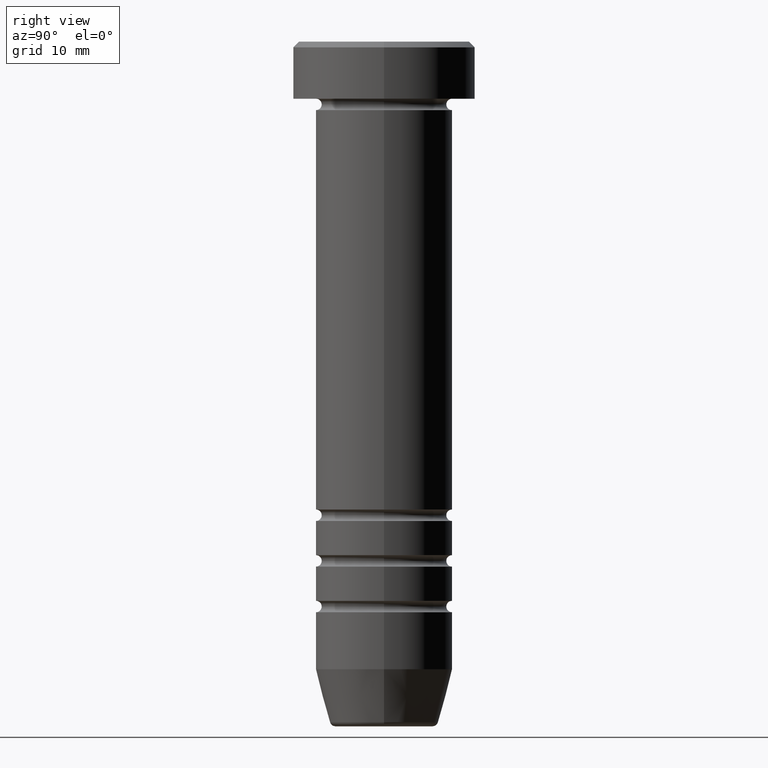
[diagram: clean part render]
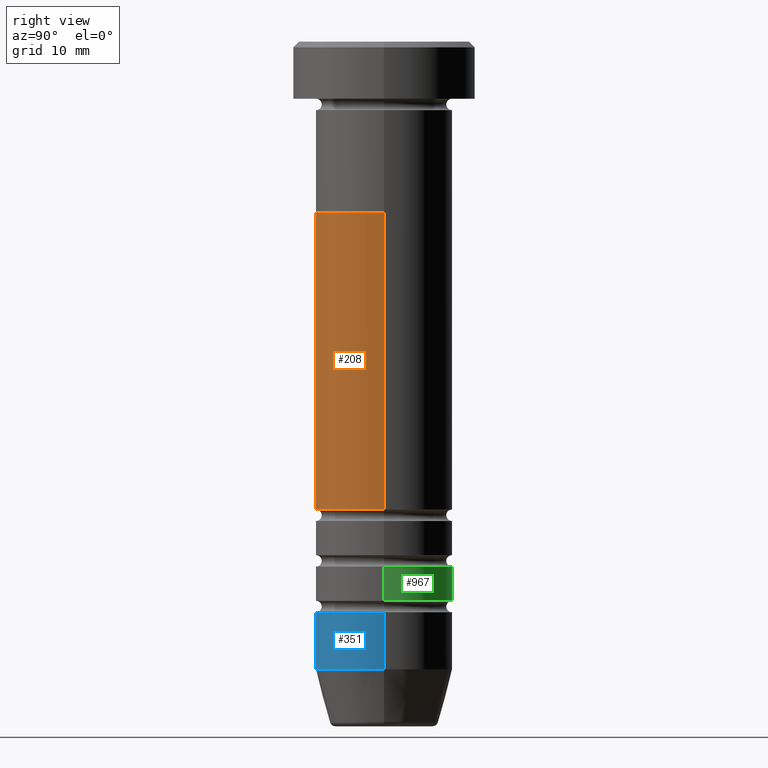
[diagram: same view with three faces highlighted in distinct colors, each labeled with its STEP entity id]
A machine part, right view with three faces highlighted in distinct colors.
Their STEP definitions:

[orange] entity #208 — the highlighted cylindrical surface (partial cylindrical patch) has radius 6 mm, axis along (-0, -0, 1).
#12 = CARTESIAN_POINT ( 'NONE',  ( 0.000000000000000000, 0.000000000000000000, -41.00000000000000711 ) ) ;
#26 = AXIS2_PLACEMENT_3D ( 'NONE', #617, #214, #1023 ) ;
#54 = CARTESIAN_POINT ( 'NONE',  ( -6.000000000000000888, 7.347880794884120722E-16, -15.00000000000000000 ) ) ;
#86 = FACE_OUTER_BOUND ( 'NONE', #486, .T. ) ;
#114 = EDGE_CURVE ( 'NONE', #652, #404, #651, .T. ) ;
#124 = CIRCLE ( 'NONE', #26, 6.000000000000000000 ) ;
#131 = LINE ( 'NONE', #536, #1005 ) ;
#176 = ORIENTED_EDGE ( 'NONE', *, *, #114, .F. ) ;
#208 = ADVANCED_FACE ( 'NONE', ( #86 ), #330, .T. ) ;
#213 = CARTESIAN_POINT ( 'NONE',  ( 6.000000000000000000, 0.000000000000000000, -15.00000000000000000 ) ) ;
#214 = DIRECTION ( 'NONE',  ( -0.000000000000000000, -0.000000000000000000, 1.000000000000000000 ) ) ;
#219 = CARTESIAN_POINT ( 'NONE',  ( -5.999999999999996447, 7.347880794884115792E-16, 0.000000000000000000 ) ) ;
#248 = AXIS2_PLACEMENT_3D ( 'NONE', #401, #1059, #736 ) ;
#277 = VECTOR ( 'NONE', #312, 1000.000000000000000 ) ;
#298 = CARTESIAN_POINT ( 'NONE',  ( 5.999999999999992895, 0.000000000000000000, -41.00000000000000711 ) ) ;
#303 = DIRECTION ( 'NONE',  ( -0.000000000000000000, -0.000000000000000000, 1.000000000000000000 ) ) ;
#312 = DIRECTION ( 'NONE',  ( -0.000000000000000000, -0.000000000000000000, 1.000000000000000000 ) ) ;
#320 = DIRECTION ( 'NONE',  ( -0.000000000000000000, -0.000000000000000000, 1.000000000000000000 ) ) ;
#330 = CYLINDRICAL_SURFACE ( 'NONE', #248, 5.999999999999996447 ) ;
#401 = CARTESIAN_POINT ( 'NONE',  ( 0.000000000000000000, 0.000000000000000000, 0.000000000000000000 ) ) ;
#404 = VERTEX_POINT ( 'NONE', #54 ) ;
#486 = EDGE_LOOP ( 'NONE', ( #176, #586, #917, #656 ) ) ;
#513 = EDGE_CURVE ( 'NONE', #669, #756, #131, .T. ) ;
#536 = CARTESIAN_POINT ( 'NONE',  ( 5.999999999999996447, 0.000000000000000000, 0.000000000000000000 ) ) ;
#586 = ORIENTED_EDGE ( 'NONE', *, *, #921, .T. ) ;
#617 = CARTESIAN_POINT ( 'NONE',  ( 0.000000000000000000, 0.000000000000000000, -15.00000000000000000 ) ) ;
#651 = LINE ( 'NONE', #219, #277 ) ;
#652 = VERTEX_POINT ( 'NONE', #1036 ) ;
#656 = ORIENTED_EDGE ( 'NONE', *, *, #1041, .F. ) ;
#669 = VERTEX_POINT ( 'NONE', #298 ) ;
#722 = CIRCLE ( 'NONE', #871, 5.999999999999992895 ) ;
#736 = DIRECTION ( 'NONE',  ( 1.000000000000000000, 0.000000000000000000, 0.000000000000000000 ) ) ;
#756 = VERTEX_POINT ( 'NONE', #213 ) ;
#871 = AXIS2_PLACEMENT_3D ( 'NONE', #12, #320, #899 ) ;
#899 = DIRECTION ( 'NONE',  ( 1.000000000000000000, 0.000000000000000000, 0.000000000000000000 ) ) ;
#917 = ORIENTED_EDGE ( 'NONE', *, *, #513, .T. ) ;
#921 = EDGE_CURVE ( 'NONE', #652, #669, #722, .T. ) ;
#1005 = VECTOR ( 'NONE', #303, 1000.000000000000000 ) ;
#1023 = DIRECTION ( 'NONE',  ( 1.000000000000000000, 0.000000000000000000, 0.000000000000000000 ) ) ;
#1036 = CARTESIAN_POINT ( 'NONE',  ( -5.999999999999992895, 7.347880794884112834E-16, -41.00000000000000711 ) ) ;
#1041 = EDGE_CURVE ( 'NONE', #404, #756, #124, .T. ) ;
#1059 = DIRECTION ( 'NONE',  ( -0.000000000000000000, -0.000000000000000000, 1.000000000000000000 ) ) ;

[blue] entity #351 — the highlighted cylindrical surface (partial cylindrical patch) has radius 6 mm, axis along (-0, -0, 1).
#25 = ORIENTED_EDGE ( 'NONE', *, *, #281, .F. ) ;
#42 = CIRCLE ( 'NONE', #706, 6.000000000000000000 ) ;
#108 = DIRECTION ( 'NONE',  ( -0.000000000000000000, -0.000000000000000000, 1.000000000000000000 ) ) ;
#115 = LINE ( 'NONE', #601, #809 ) ;
#123 = DIRECTION ( 'NONE',  ( -0.000000000000000000, -0.000000000000000000, 1.000000000000000000 ) ) ;
#168 = AXIS2_PLACEMENT_3D ( 'NONE', #350, #507, #272 ) ;
#185 = VERTEX_POINT ( 'NONE', #338 ) ;
#193 = EDGE_CURVE ( 'NONE', #717, #556, #42, .T. ) ;
#206 = CYLINDRICAL_SURFACE ( 'NONE', #873, 6.000000000000000000 ) ;
#230 = CARTESIAN_POINT ( 'NONE',  ( 6.000000000000000000, 0.000000000000000000, -54.99999999999999289 ) ) ;
#264 = CIRCLE ( 'NONE', #168, 6.000000000000000000 ) ;
#272 = DIRECTION ( 'NONE',  ( 1.000000000000000000, 0.000000000000000000, 0.000000000000000000 ) ) ;
#281 = EDGE_CURVE ( 'NONE', #185, #717, #115, .T. ) ;
#296 = EDGE_CURVE ( 'NONE', #185, #715, #264, .T. ) ;
#315 = EDGE_LOOP ( 'NONE', ( #25, #830, #430, #748 ) ) ;
#338 = CARTESIAN_POINT ( 'NONE',  ( -6.000000000000000000, 7.347880794884119736E-16, -54.99999999999999289 ) ) ;
#350 = CARTESIAN_POINT ( 'NONE',  ( 0.000000000000000000, 0.000000000000000000, -54.99999999999999289 ) ) ;
#351 = ADVANCED_FACE ( 'NONE', ( #938 ), #206, .T. ) ;
#430 = ORIENTED_EDGE ( 'NONE', *, *, #714, .T. ) ;
#445 = DIRECTION ( 'NONE',  ( 1.000000000000000000, 0.000000000000000000, 0.000000000000000000 ) ) ;
#490 = LINE ( 'NONE', #640, #829 ) ;
#507 = DIRECTION ( 'NONE',  ( -0.000000000000000000, -0.000000000000000000, 1.000000000000000000 ) ) ;
#523 = CARTESIAN_POINT ( 'NONE',  ( 0.000000000000000000, 0.000000000000000000, 0.000000000000000000 ) ) ;
#556 = VERTEX_POINT ( 'NONE', #573 ) ;
#573 = CARTESIAN_POINT ( 'NONE',  ( 6.000000000000000000, 0.000000000000000000, -50.00000000000000000 ) ) ;
#601 = CARTESIAN_POINT ( 'NONE',  ( -6.000000000000000000, 7.347880794884119736E-16, 0.000000000000000000 ) ) ;
#640 = CARTESIAN_POINT ( 'NONE',  ( 6.000000000000000000, 0.000000000000000000, 0.000000000000000000 ) ) ;
#664 = DIRECTION ( 'NONE',  ( 1.000000000000000000, 0.000000000000000000, 0.000000000000000000 ) ) ;
#706 = AXIS2_PLACEMENT_3D ( 'NONE', #900, #740, #664 ) ;
#714 = EDGE_CURVE ( 'NONE', #715, #556, #490, .T. ) ;
#715 = VERTEX_POINT ( 'NONE', #230 ) ;
#717 = VERTEX_POINT ( 'NONE', #883 ) ;
#740 = DIRECTION ( 'NONE',  ( -0.000000000000000000, -0.000000000000000000, 1.000000000000000000 ) ) ;
#748 = ORIENTED_EDGE ( 'NONE', *, *, #193, .F. ) ;
#809 = VECTOR ( 'NONE', #108, 1000.000000000000000 ) ;
#829 = VECTOR ( 'NONE', #961, 1000.000000000000000 ) ;
#830 = ORIENTED_EDGE ( 'NONE', *, *, #296, .T. ) ;
#873 = AXIS2_PLACEMENT_3D ( 'NONE', #523, #123, #445 ) ;
#883 = CARTESIAN_POINT ( 'NONE',  ( -6.000000000000000000, 7.347880794884119736E-16, -50.00000000000000000 ) ) ;
#900 = CARTESIAN_POINT ( 'NONE',  ( 0.000000000000000000, 0.000000000000000000, -50.00000000000000000 ) ) ;
#938 = FACE_OUTER_BOUND ( 'NONE', #315, .T. ) ;
#961 = DIRECTION ( 'NONE',  ( -0.000000000000000000, -0.000000000000000000, 1.000000000000000000 ) ) ;

[green] entity #967 — the highlighted cylindrical surface (partial cylindrical patch) has radius 6 mm, axis along (-0, -0, 1).
#1 = DIRECTION ( 'NONE',  ( 1.000000000000000000, 0.000000000000000000, 0.000000000000000000 ) ) ;
#23 = VERTEX_POINT ( 'NONE', #433 ) ;
#24 = VERTEX_POINT ( 'NONE', #508 ) ;
#39 = ORIENTED_EDGE ( 'NONE', *, *, #728, .F. ) ;
#140 = EDGE_CURVE ( 'NONE', #23, #24, #378, .T. ) ;
#171 = CARTESIAN_POINT ( 'NONE',  ( 6.000000000000000000, 0.000000000000000000, -46.00000000000000711 ) ) ;
#181 = VERTEX_POINT ( 'NONE', #171 ) ;
#207 = DIRECTION ( 'NONE',  ( -0.000000000000000000, -0.000000000000000000, 1.000000000000000000 ) ) ;
#216 = VECTOR ( 'NONE', #713, 1000.000000000000000 ) ;
#271 = EDGE_LOOP ( 'NONE', ( #425, #563, #1034, #39 ) ) ;
#316 = CARTESIAN_POINT ( 'NONE',  ( 0.000000000000000000, 0.000000000000000000, -49.00000000000000000 ) ) ;
#344 = AXIS2_PLACEMENT_3D ( 'NONE', #316, #663, #1 ) ;
#363 = DIRECTION ( 'NONE',  ( 1.000000000000000000, 0.000000000000000000, 0.000000000000000000 ) ) ;
#378 = LINE ( 'NONE', #857, #216 ) ;
#395 = CIRCLE ( 'NONE', #693, 6.000000000000000000 ) ;
#407 = AXIS2_PLACEMENT_3D ( 'NONE', #934, #422, #434 ) ;
#418 = CYLINDRICAL_SURFACE ( 'NONE', #407, 5.999999999999996447 ) ;
#422 = DIRECTION ( 'NONE',  ( -0.000000000000000000, -0.000000000000000000, 1.000000000000000000 ) ) ;
#425 = ORIENTED_EDGE ( 'NONE', *, *, #432, .T. ) ;
#432 = EDGE_CURVE ( 'NONE', #842, #23, #692, .T. ) ;
#433 = CARTESIAN_POINT ( 'NONE',  ( -5.999999999999992895, 7.347880794884112834E-16, -49.00000000000000000 ) ) ;
#434 = DIRECTION ( 'NONE',  ( 1.000000000000000000, 0.000000000000000000, 0.000000000000000000 ) ) ;
#508 = CARTESIAN_POINT ( 'NONE',  ( -6.000000000000000888, 7.347880794884120722E-16, -46.00000000000000711 ) ) ;
#524 = DIRECTION ( 'NONE',  ( -0.000000000000000000, -0.000000000000000000, 1.000000000000000000 ) ) ;
#563 = ORIENTED_EDGE ( 'NONE', *, *, #140, .T. ) ;
#663 = DIRECTION ( 'NONE',  ( -0.000000000000000000, -0.000000000000000000, 1.000000000000000000 ) ) ;
#683 = CARTESIAN_POINT ( 'NONE',  ( 0.000000000000000000, 0.000000000000000000, -46.00000000000000711 ) ) ;
#692 = CIRCLE ( 'NONE', #344, 5.999999999999992895 ) ;
#693 = AXIS2_PLACEMENT_3D ( 'NONE', #683, #524, #363 ) ;
#713 = DIRECTION ( 'NONE',  ( -0.000000000000000000, -0.000000000000000000, 1.000000000000000000 ) ) ;
#728 = EDGE_CURVE ( 'NONE', #842, #181, #939, .T. ) ;
#735 = EDGE_CURVE ( 'NONE', #181, #24, #395, .T. ) ;
#833 = FACE_OUTER_BOUND ( 'NONE', #271, .T. ) ;
#842 = VERTEX_POINT ( 'NONE', #849 ) ;
#849 = CARTESIAN_POINT ( 'NONE',  ( 5.999999999999992895, 0.000000000000000000, -49.00000000000000000 ) ) ;
#856 = VECTOR ( 'NONE', #207, 1000.000000000000000 ) ;
#857 = CARTESIAN_POINT ( 'NONE',  ( -5.999999999999996447, 7.347880794884115792E-16, 0.000000000000000000 ) ) ;
#933 = CARTESIAN_POINT ( 'NONE',  ( 5.999999999999996447, 0.000000000000000000, 0.000000000000000000 ) ) ;
#934 = CARTESIAN_POINT ( 'NONE',  ( 0.000000000000000000, 0.000000000000000000, 0.000000000000000000 ) ) ;
#939 = LINE ( 'NONE', #933, #856 ) ;
#967 = ADVANCED_FACE ( 'NONE', ( #833 ), #418, .T. ) ;
#1034 = ORIENTED_EDGE ( 'NONE', *, *, #735, .F. ) ;